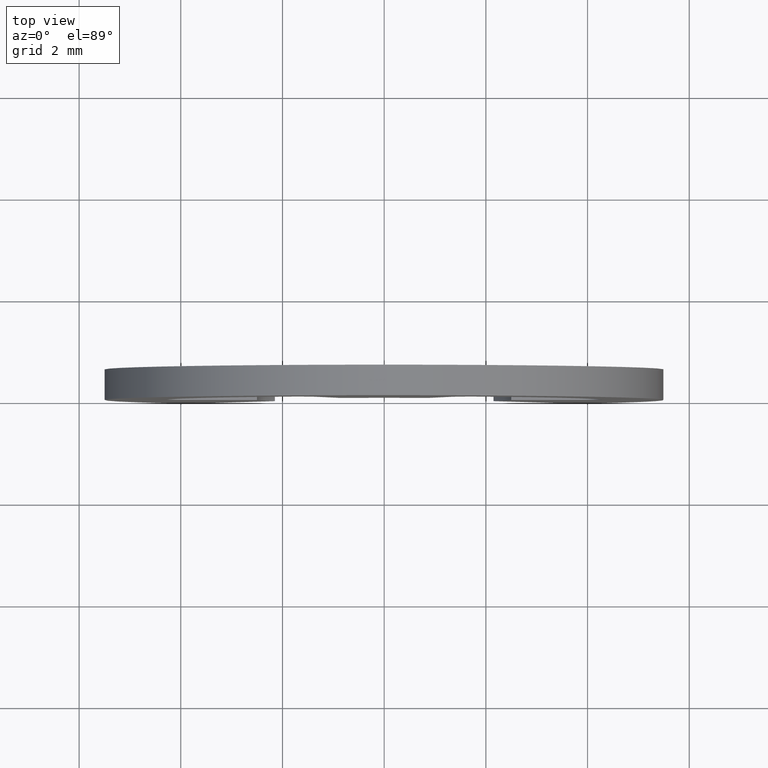
[diagram: clean part render]
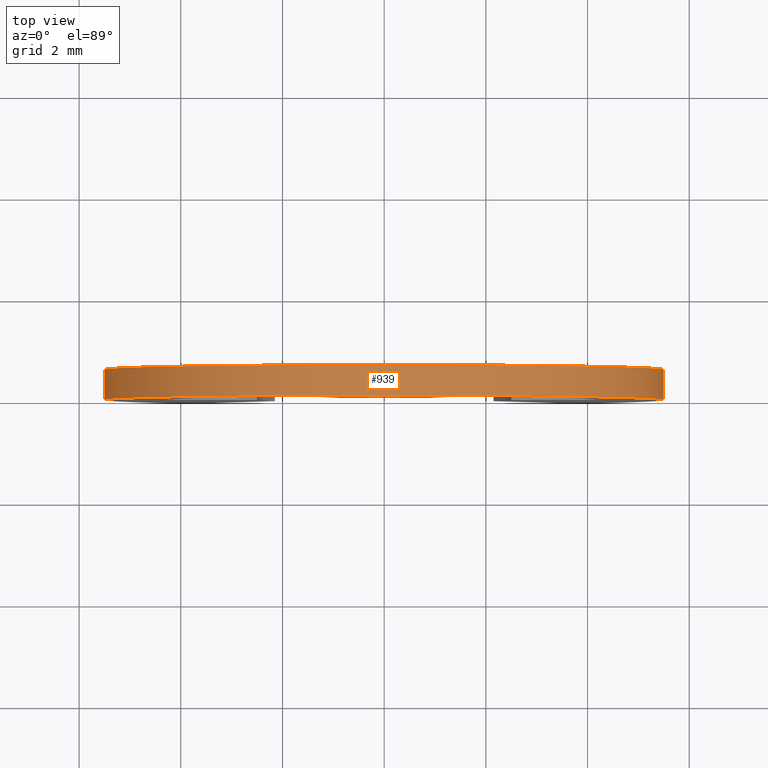
[diagram: same view with one face highlighted and labeled with its STEP entity id]
A machine part, top view. The second image highlights one B-rep face of the part: STEP entity #939.
In plain terms, the highlighted face is a freeform B-spline surface patch.
Its self-contained STEP definition (entity closure, byte-faithful):
#49=CARTESIAN_POINT('',(4.123654509424055,0.0,-3.639433127137615));
#50=VERTEX_POINT('',#49);
#51=CARTESIAN_POINT('',(-4.123653205531125,0.0,-3.639434604511100));
#52=VERTEX_POINT('',#51);
#53=CARTESIAN_POINT('',(4.123654509424050,0.0,-3.639433127137617));
#54=CARTESIAN_POINT('',(7.614998239861816,0.0,0.316428902752809));
#55=CARTESIAN_POINT('',(3.807498437289647,0.0,3.968999326031297));
#56=CARTESIAN_POINT('',(-0.000001365282522,0.0,7.621569749309786));
#57=CARTESIAN_POINT('',(-3.807499859255109,0.0,3.968997961925947));
#58=CARTESIAN_POINT('',(-7.614998353227692,0.0,0.316426174542111));
#59=CARTESIAN_POINT('',(-4.123653205531126,0.0,-3.639434604511100));
#67=(BOUNDED_CURVE()B_SPLINE_CURVE(2,(#53,#54,#55,#56,#57,#58,#59),.UNSPECIFIED.,.F.,.U.)B_SPLINE_CURVE_WITH_KNOTS((3,2,2,3),(0.0,0.333333333333333,0.666666666666667,1.0),.UNSPECIFIED.)CURVE()GEOMETRIC_REPRESENTATION_ITEM()RATIONAL_B_SPLINE_CURVE((1.0,0.721636117087034,1.0,0.721636117087034,1.0,0.721636117087034,1.0))REPRESENTATION_ITEM(''));
#68=EDGE_CURVE('',#50,#52,#67,.T.);
#295=CARTESIAN_POINT('',(4.123654509424055,0.600000000000045,-3.639433127137615));
#296=VERTEX_POINT('',#295);
#297=CARTESIAN_POINT('',(-4.123653205531125,0.600000000000045,-3.639434604511100));
#298=VERTEX_POINT('',#297);
#299=CARTESIAN_POINT('',(4.123654509424050,0.600000000000045,-3.639433127137617));
#300=CARTESIAN_POINT('',(7.614998239861816,0.600000000000045,0.316428902752809));
#301=CARTESIAN_POINT('',(3.807498437289647,0.600000000000045,3.968999326031297));
#302=CARTESIAN_POINT('',(-0.000001365282522,0.600000000000045,7.621569749309786));
#303=CARTESIAN_POINT('',(-3.807499859255109,0.600000000000045,3.968997961925947));
#304=CARTESIAN_POINT('',(-7.614998353227692,0.600000000000045,0.316426174542111));
#305=CARTESIAN_POINT('',(-4.123653205531126,0.600000000000045,-3.639434604511100));
#313=(BOUNDED_CURVE()B_SPLINE_CURVE(2,(#299,#300,#301,#302,#303,#304,#305),.UNSPECIFIED.,.F.,.U.)B_SPLINE_CURVE_WITH_KNOTS((3,2,2,3),(0.0,0.333333333333333,0.666666666666667,1.0),.UNSPECIFIED.)CURVE()GEOMETRIC_REPRESENTATION_ITEM()RATIONAL_B_SPLINE_CURVE((1.0,0.721636117087034,1.0,0.721636117087034,1.0,0.721636117087034,1.0))REPRESENTATION_ITEM(''));
#314=EDGE_CURVE('',#296,#298,#313,.T.);
#557=CARTESIAN_POINT('',(4.123654509424055,0.600000000000045,-3.639433127137615));
#558=CARTESIAN_POINT('',(4.123654509424055,0.0,-3.639433127137615));
#559=QUASI_UNIFORM_CURVE('',1,(#557,#558),.UNSPECIFIED.,.F.,.U.);
#560=EDGE_CURVE('',#296,#50,#559,.T.);
#901=CARTESIAN_POINT('',(-4.123653205531125,0.600000000000045,-3.639434604511100));
#902=CARTESIAN_POINT('',(-4.123653205531125,0.0,-3.639434604511100));
#903=QUASI_UNIFORM_CURVE('',1,(#901,#902),.UNSPECIFIED.,.F.,.U.);
#904=EDGE_CURVE('',#298,#52,#903,.T.);
#911=CARTESIAN_POINT('',(-4.017912668553516,0.615000000000046,-3.755845815242839));
#912=CARTESIAN_POINT('',(-4.017912668553516,-0.015375000000001,-3.755845815242839));
#913=CARTESIAN_POINT('',(-7.751971173835771,0.615000000000046,0.238759318068133));
#914=CARTESIAN_POINT('',(-7.751971173835771,-0.015375000000001,0.238759318068133));
#915=CARTESIAN_POINT('',(-3.779157391043287,0.615000000000046,3.995994170881994));
#916=CARTESIAN_POINT('',(-3.779157391043287,-0.015375000000001,3.995994170881994));
#917=CARTESIAN_POINT('',(0.193656391749196,0.615000000000046,7.753229023695855));
#918=CARTESIAN_POINT('',(0.193656391749196,-0.015375000000001,7.753229023695855));
#919=CARTESIAN_POINT('',(3.973940423654858,0.615000000000046,3.802341056407464));
#920=CARTESIAN_POINT('',(3.973940423654858,-0.015375000000001,3.802341056407464));
#921=CARTESIAN_POINT('',(7.754224455560520,0.615000000000046,-0.148546910880927));
#922=CARTESIAN_POINT('',(7.754224455560520,-0.015375000000001,-0.148546910880927));
#923=CARTESIAN_POINT('',(3.825396026654436,0.615000000000046,-3.951752173309511));
#924=CARTESIAN_POINT('',(3.825396026654436,-0.015375000000001,-3.951752173309511));
#932=(BOUNDED_SURFACE()B_SPLINE_SURFACE(1,2,((#911,#913,#915,#917,#919,#921,#923),(#912,#914,#916,#918,#920,#922,#924)),.UNSPECIFIED.,.F.,.F.,.U.)B_SPLINE_SURFACE_WITH_KNOTS((2,2),(3,2,2,3),(0.0,1.0),(0.0,9.075233275757384,18.150466551514771,27.225699827272152),.UNSPECIFIED.)GEOMETRIC_REPRESENTATION_ITEM()RATIONAL_B_SPLINE_SURFACE(((1.0,0.709160676911444,1.0,0.709160676911444,1.0,0.709160676911444,1.0),(1.0,0.709160676911444,1.0,0.709160676911444,1.0,0.709160676911444,1.0)))REPRESENTATION_ITEM('')SURFACE());
#933=ORIENTED_EDGE('',*,*,#68,.F.);
#934=ORIENTED_EDGE('',*,*,#560,.F.);
#935=ORIENTED_EDGE('',*,*,#314,.T.);
#936=ORIENTED_EDGE('',*,*,#904,.T.);
#937=EDGE_LOOP('',(#933,#934,#935,#936));
#938=FACE_OUTER_BOUND('',#937,.T.);
#939=ADVANCED_FACE('',(#938),#932,.T.);